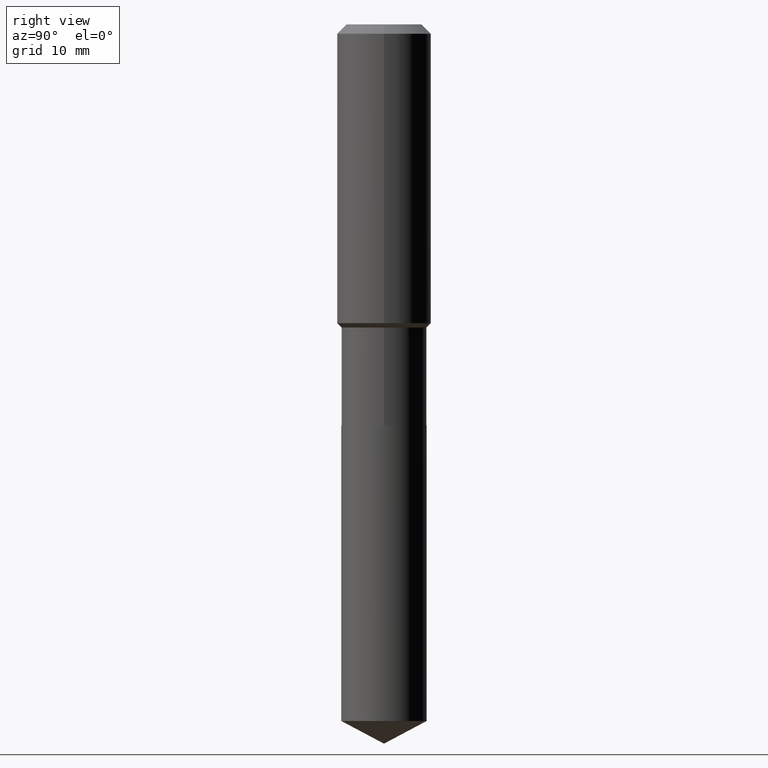
[diagram: clean part render]
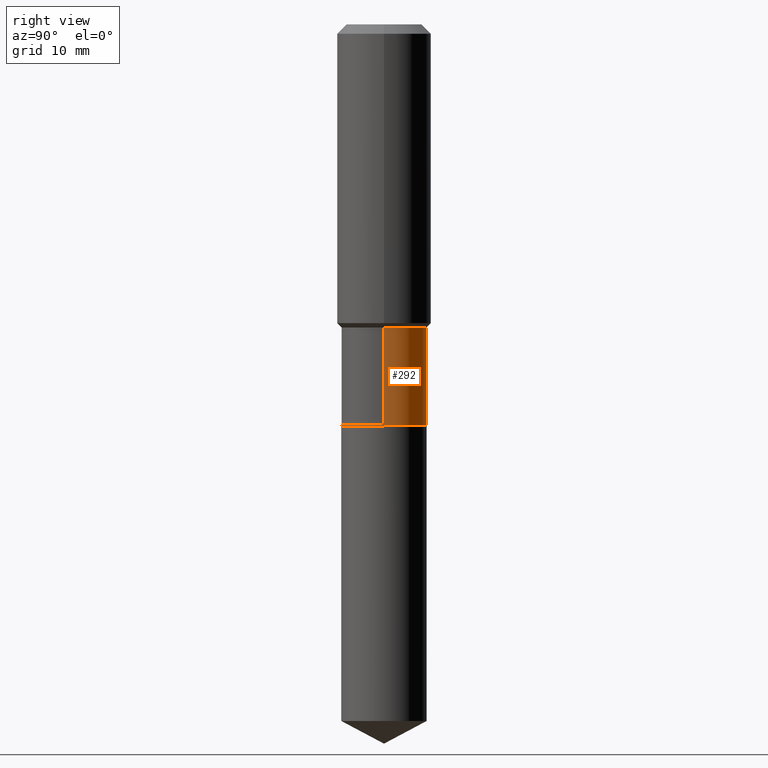
[diagram: same view with one face highlighted and labeled with its STEP entity id]
A machine part, right view. The second image highlights one B-rep face of the part: STEP entity #292.
In plain terms, the highlighted cylindrical surface (partial cylindrical patch) has radius 6.35 mm, axis along (-0, 0, 1).
Its self-contained STEP definition (entity closure, byte-faithful):
#42 = CARTESIAN_POINT ( 'NONE',  ( -0.2499999999999999167, -5.425347144164564958E-15, -1.775400000000000311 ) ) ;
#52 = AXIS2_PLACEMENT_3D ( 'NONE', #419, #280, #351 ) ;
#62 = CYLINDRICAL_SURFACE ( 'NONE', #87, 0.2499999999999999722 ) ;
#66 = ORIENTED_EDGE ( 'NONE', *, *, #347, .T. ) ;
#70 = ORIENTED_EDGE ( 'NONE', *, *, #339, .T. ) ;
#86 = LINE ( 'NONE', #420, #355 ) ;
#87 = AXIS2_PLACEMENT_3D ( 'NONE', #404, #96, #366 ) ;
#89 = DIRECTION ( 'NONE',  ( -2.445468806185136877E-29, 3.491481338843145188E-15, 1.000000000000000000 ) ) ;
#96 = DIRECTION ( 'NONE',  ( -2.445468806185136597E-29, 3.491481338843145583E-15, 1.000000000000000000 ) ) ;
#101 = ORIENTED_EDGE ( 'NONE', *, *, #166, .F. ) ;
#108 = VECTOR ( 'NONE', #89, 39.37007874015748143 ) ;
#135 = CIRCLE ( 'NONE', #52, 0.2499999999999999167 ) ;
#148 = CARTESIAN_POINT ( 'NONE',  ( 0.2500000000000000000, -9.950372667569074950E-15, -2.349900000000000322 ) ) ;
#158 = CARTESIAN_POINT ( 'NONE',  ( 0.2499999999999999167, -7.944516638403687674E-15, -1.775400000000000311 ) ) ;
#159 = VERTEX_POINT ( 'NONE', #158 ) ;
#166 = EDGE_CURVE ( 'NONE', #278, #159, #86, .T. ) ;
#185 = EDGE_LOOP ( 'NONE', ( #66, #70, #411, #101 ) ) ;
#201 = DIRECTION ( 'NONE',  ( 1.000000000000000000, -6.982962677686266711E-15, 0.000000000000000000 ) ) ;
#217 = VERTEX_POINT ( 'NONE', #401 ) ;
#237 = DIRECTION ( 'NONE',  ( -2.445468806185136597E-29, 3.491481338843145583E-15, 1.000000000000000000 ) ) ;
#241 = CARTESIAN_POINT ( 'NONE',  ( 5.746607147654452891E-29, -8.204631998147508272E-15, -2.349900000000000322 ) ) ;
#278 = VERTEX_POINT ( 'NONE', #148 ) ;
#280 = DIRECTION ( 'NONE',  ( -2.445468806185136597E-29, 3.491481338843145583E-15, 1.000000000000000000 ) ) ;
#292 = ADVANCED_FACE ( 'NONE', ( #434 ), #62, .T. ) ;
#322 = LINE ( 'NONE', #395, #108 ) ;
#336 = CIRCLE ( 'NONE', #486, 0.2500000000000000000 ) ;
#339 = EDGE_CURVE ( 'NONE', #217, #340, #322, .T. ) ;
#340 = VERTEX_POINT ( 'NONE', #42 ) ;
#347 = EDGE_CURVE ( 'NONE', #278, #217, #336, .T. ) ;
#351 = DIRECTION ( 'NONE',  ( 1.000000000000000000, -6.982962677686269077E-15, 0.000000000000000000 ) ) ;
#355 = VECTOR ( 'NONE', #387, 39.37007874015748143 ) ;
#366 = DIRECTION ( 'NONE',  ( 1.000000000000000000, -6.982962677686266711E-15, 4.876176775795935793E-29 ) ) ;
#387 = DIRECTION ( 'NONE',  ( -2.445468806185136877E-29, 3.491481338843145188E-15, 1.000000000000000000 ) ) ;
#395 = CARTESIAN_POINT ( 'NONE',  ( -0.2499999999999999722, 1.776356839400250267E-15, -1.229733772563726305E-29 ) ) ;
#401 = CARTESIAN_POINT ( 'NONE',  ( -0.2500000000000000555, -5.425347144164564170E-15, -2.349900000000000322 ) ) ;
#404 = CARTESIAN_POINT ( 'NONE',  ( 0.000000000000000000, 0.000000000000000000, 0.000000000000000000 ) ) ;
#411 = ORIENTED_EDGE ( 'NONE', *, *, #433, .F. ) ;
#419 = CARTESIAN_POINT ( 'NONE',  ( 4.341685318501092485E-29, -6.198775968982121785E-15, -1.775400000000000311 ) ) ;
#420 = CARTESIAN_POINT ( 'NONE',  ( 0.2499999999999999722, -1.745740669421566480E-15, 1.219044193948983808E-29 ) ) ;
#433 = EDGE_CURVE ( 'NONE', #159, #340, #135, .T. ) ;
#434 = FACE_OUTER_BOUND ( 'NONE', #185, .T. ) ;
#486 = AXIS2_PLACEMENT_3D ( 'NONE', #241, #237, #201 ) ;